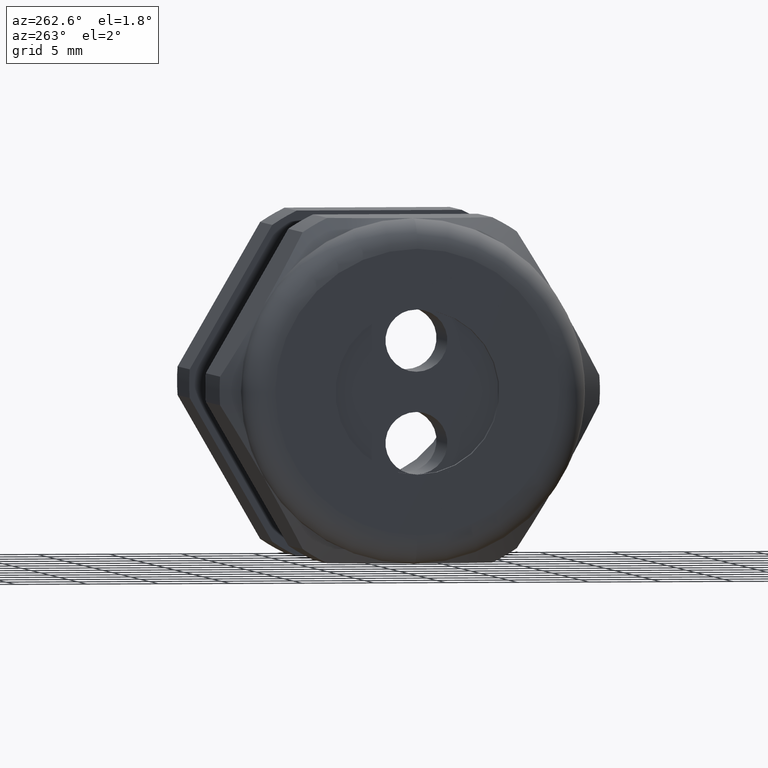
[diagram: clean part render]
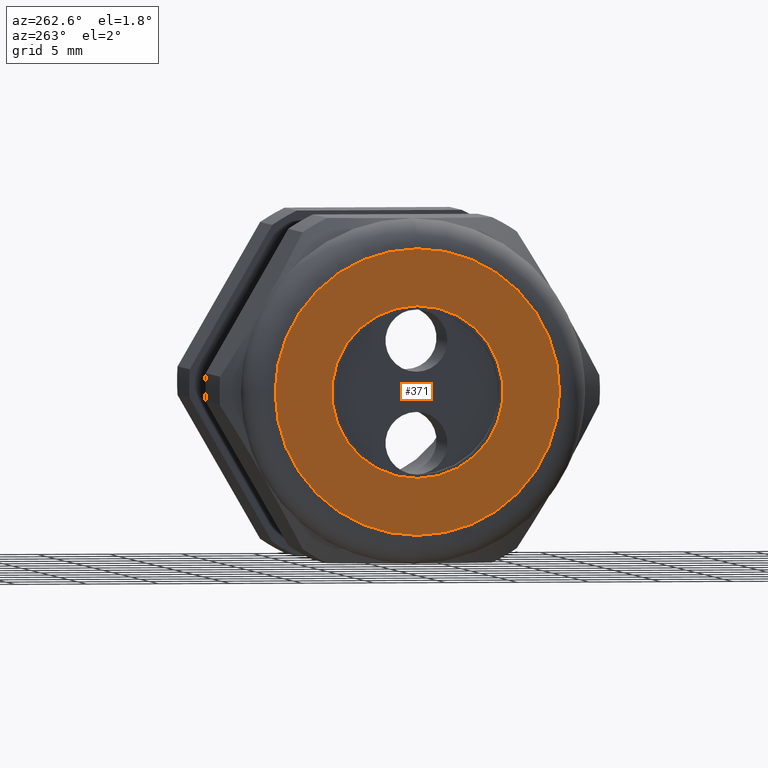
[diagram: same view with one face highlighted and labeled with its STEP entity id]
A machine part, auxiliary view. The second image highlights one B-rep face of the part: STEP entity #371.
In plain terms, the highlighted planar face has unit normal (-1, 0, 0).
Its self-contained STEP definition (entity closure, byte-faithful):
#352 = ORIENTED_EDGE ( 'NONE', *, *, #366, .T. ) ;
#365 = ORIENTED_EDGE ( 'NONE', *, *, #4725, .T. ) ;
#366 = EDGE_CURVE ( 'NONE', #4800, #4794, #1625, .T. ) ;
#367 = EDGE_LOOP ( 'NONE', ( #352, #376 ) ) ;
#371 = ADVANCED_FACE ( 'NONE', ( #1615, #1614 ), #1613, .T. ) ;
#373 = EDGE_LOOP ( 'NONE', ( #365, #375 ) ) ;
#375 = ORIENTED_EDGE ( 'NONE', *, *, #377, .T. ) ;
#376 = ORIENTED_EDGE ( 'NONE', *, *, #4795, .T. ) ;
#377 = EDGE_CURVE ( 'NONE', #4717, #4721, #1608, .T. ) ;
#1604 = DIRECTION ( 'NONE',  ( 0.0000000000000000000, 0.0000000000000000000, 1.000000000000000000 ) ) ;
#1605 = DIRECTION ( 'NONE',  ( -1.000000000000000000, 0.0000000000000000000, 0.0000000000000000000 ) ) ;
#1606 = CARTESIAN_POINT ( 'NONE',  ( -1.370000000000000100, 0.0000000000000000000, 0.0000000000000000000 ) ) ;
#1607 = AXIS2_PLACEMENT_3D ( 'NONE', #1606, #1605, #1604 ) ;
#1608 = CIRCLE ( 'NONE', #1607, 0.3899999999999999600 ) ;
#1609 = DIRECTION ( 'NONE',  ( 0.0000000000000000000, 0.0000000000000000000, 1.000000000000000000 ) ) ;
#1610 = DIRECTION ( 'NONE',  ( -1.000000000000000000, 0.0000000000000000000, 0.0000000000000000000 ) ) ;
#1611 = CARTESIAN_POINT ( 'NONE',  ( -1.370000000000000100, 0.4699999999999999200, 0.0000000000000000000 ) ) ;
#1612 = AXIS2_PLACEMENT_3D ( 'NONE', #1611, #1610, #1609 ) ;
#1613 = PLANE ( 'NONE',  #1612 ) ;
#1614 = FACE_BOUND ( 'NONE', #367, .T. ) ;
#1615 = FACE_OUTER_BOUND ( 'NONE', #373, .T. ) ;
#1621 = DIRECTION ( 'NONE',  ( 0.0000000000000000000, 0.0000000000000000000, -1.000000000000000000 ) ) ;
#1622 = DIRECTION ( 'NONE',  ( 1.000000000000000000, 0.0000000000000000000, 0.0000000000000000000 ) ) ;
#1623 = CARTESIAN_POINT ( 'NONE',  ( -1.370000000000000100, 0.0000000000000000000, 0.0000000000000000000 ) ) ;
#1624 = AXIS2_PLACEMENT_3D ( 'NONE', #1623, #1622, #1621 ) ;
#1625 = CIRCLE ( 'NONE', #1624, 0.2349999999999999900 ) ;
#3840 = CARTESIAN_POINT ( 'NONE',  ( -1.370000000000000100, 5.265981236333617600E-017, -0.3899999999999999600 ) ) ;
#3884 = DIRECTION ( 'NONE',  ( 0.0000000000000000000, 0.0000000000000000000, 1.000000000000000000 ) ) ;
#3885 = DIRECTION ( 'NONE',  ( -1.000000000000000000, 0.0000000000000000000, 0.0000000000000000000 ) ) ;
#3886 = CARTESIAN_POINT ( 'NONE',  ( -1.370000000000000100, 0.0000000000000000000, 0.0000000000000000000 ) ) ;
#3887 = AXIS2_PLACEMENT_3D ( 'NONE', #3886, #3885, #3884 ) ;
#3888 = CIRCLE ( 'NONE', #3887, 0.3899999999999999600 ) ;
#3894 = CARTESIAN_POINT ( 'NONE',  ( -1.370000000000000100, 0.0000000000000000000, 0.3899999999999999600 ) ) ;
#3998 = CARTESIAN_POINT ( 'NONE',  ( -1.370000000000000100, 0.0000000000000000000, 0.0000000000000000000 ) ) ;
#3999 = AXIS2_PLACEMENT_3D ( 'NONE', #3998, #4061, #4060 ) ;
#4000 = CIRCLE ( 'NONE', #3999, 0.2349999999999999900 ) ;
#4001 = CARTESIAN_POINT ( 'NONE',  ( -1.370000000000000100, 2.877919977996279800E-017, 0.2349999999999999900 ) ) ;
#4059 = CARTESIAN_POINT ( 'NONE',  ( -1.370000000000000100, 0.0000000000000000000, -0.2349999999999999900 ) ) ;
#4060 = DIRECTION ( 'NONE',  ( 0.0000000000000000000, 0.0000000000000000000, -1.000000000000000000 ) ) ;
#4061 = DIRECTION ( 'NONE',  ( 1.000000000000000000, 0.0000000000000000000, 0.0000000000000000000 ) ) ;
#4717 = VERTEX_POINT ( 'NONE', #3840 ) ;
#4721 = VERTEX_POINT ( 'NONE', #3894 ) ;
#4725 = EDGE_CURVE ( 'NONE', #4721, #4717, #3888, .T. ) ;
#4794 = VERTEX_POINT ( 'NONE', #4001 ) ;
#4795 = EDGE_CURVE ( 'NONE', #4794, #4800, #4000, .T. ) ;
#4800 = VERTEX_POINT ( 'NONE', #4059 ) ;